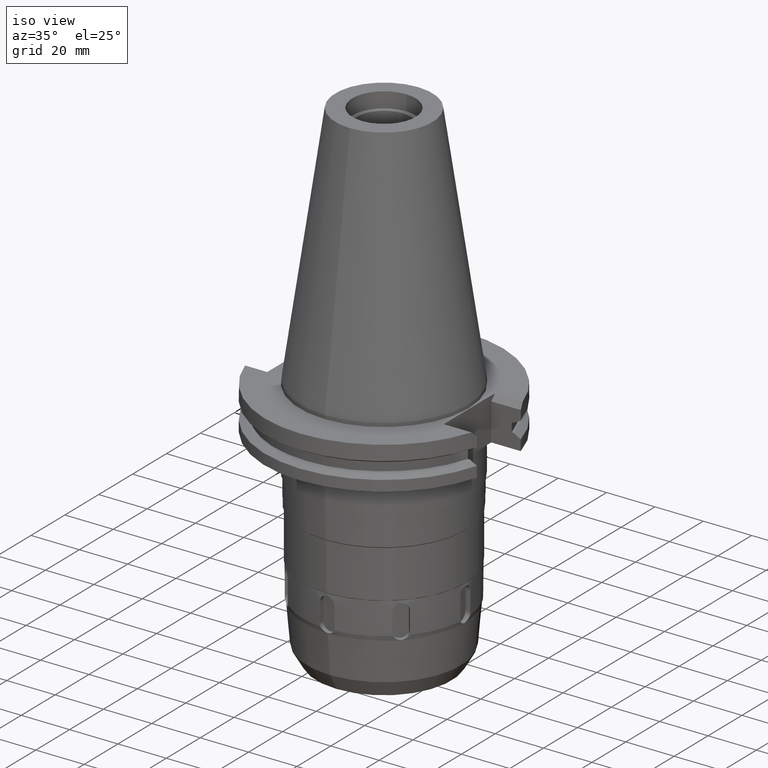
[diagram: clean part render]
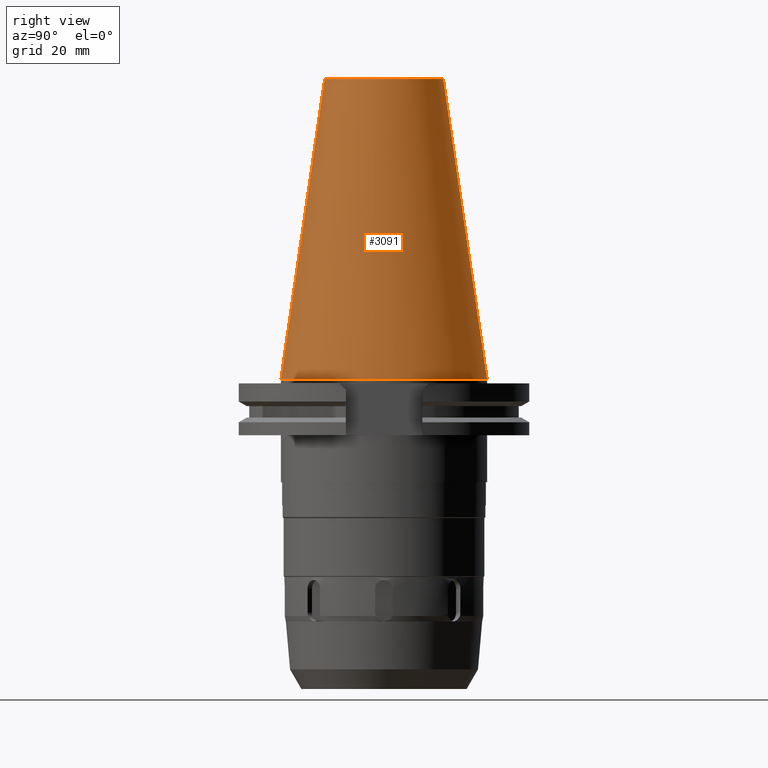
[diagram: tour spotlight — one face highlighted and labeled with its STEP entity id]
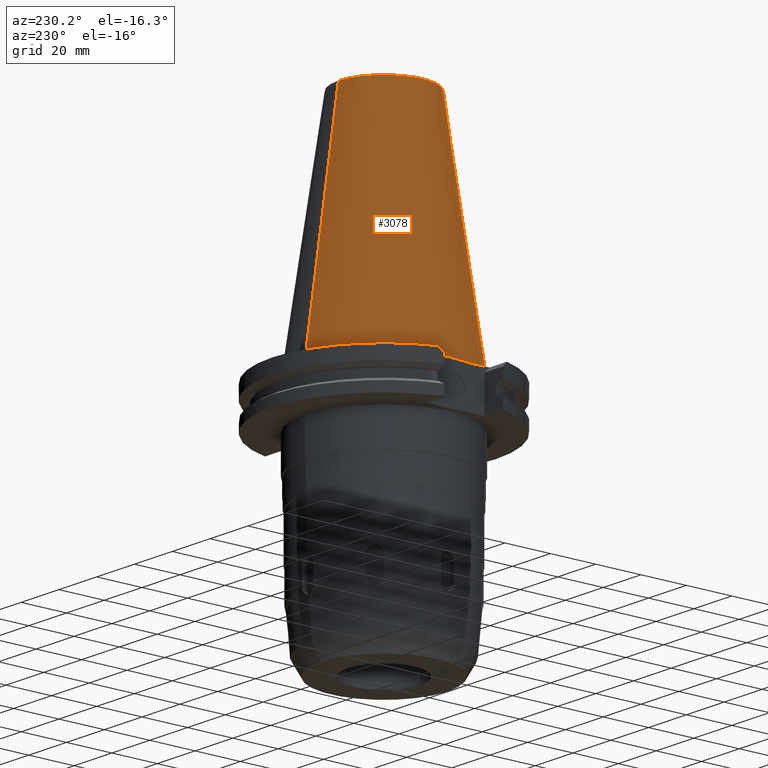
[diagram: tour spotlight — one face highlighted and labeled with its STEP entity id]
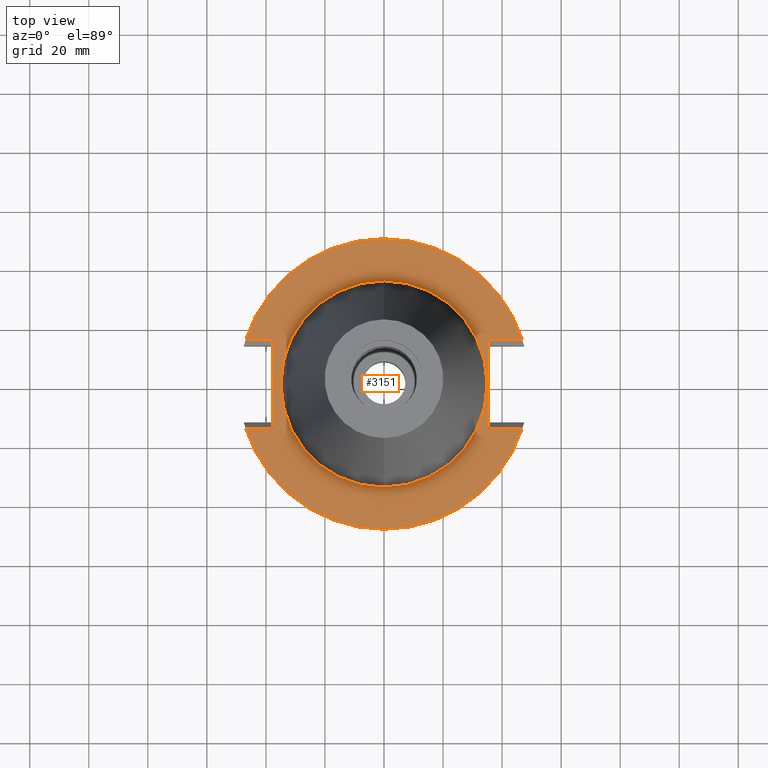
[diagram: tour spotlight — one face highlighted and labeled with its STEP entity id]
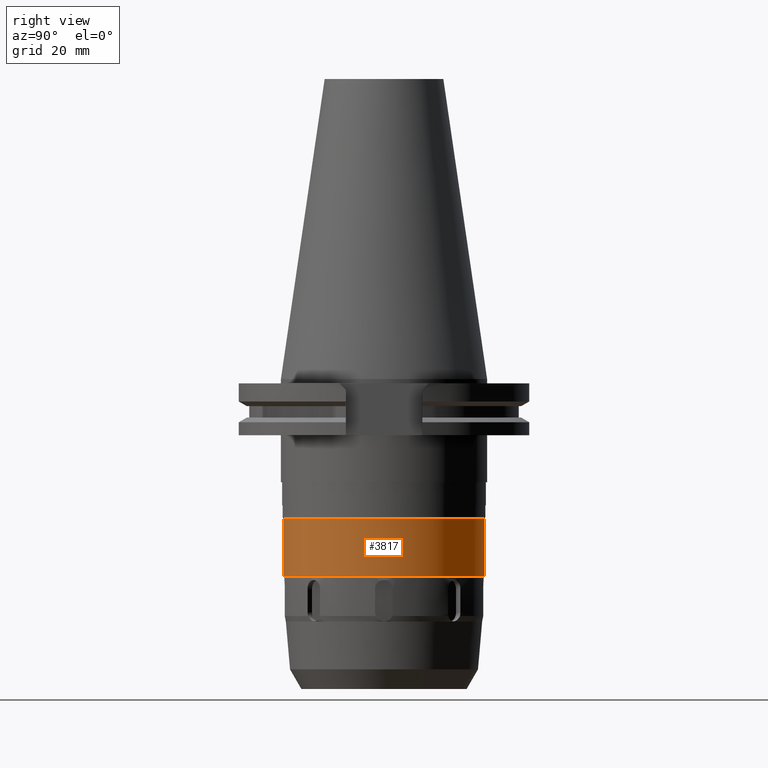
[diagram: tour spotlight — one face highlighted and labeled with its STEP entity id]
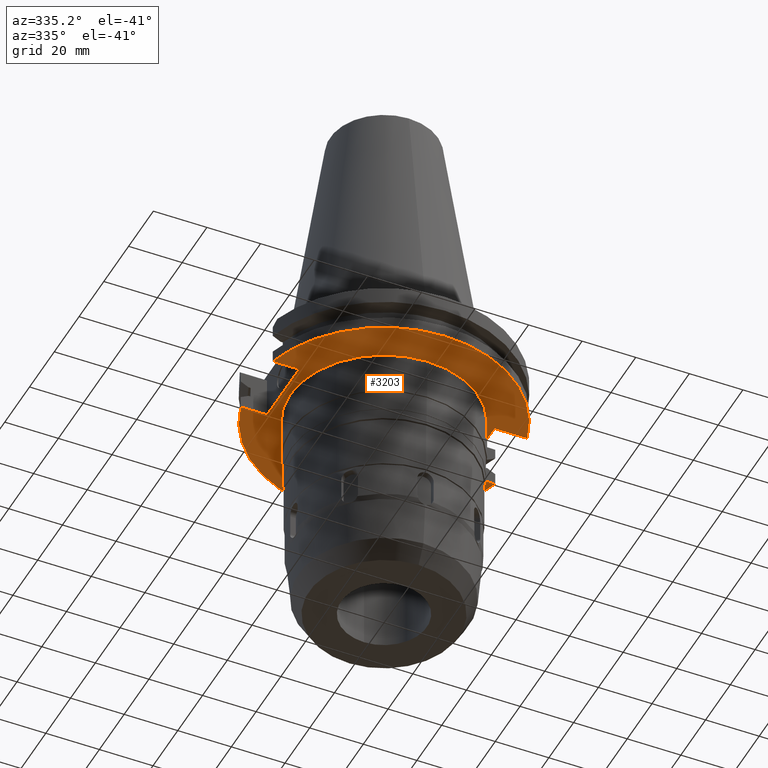
[diagram: tour spotlight — one face highlighted and labeled with its STEP entity id]
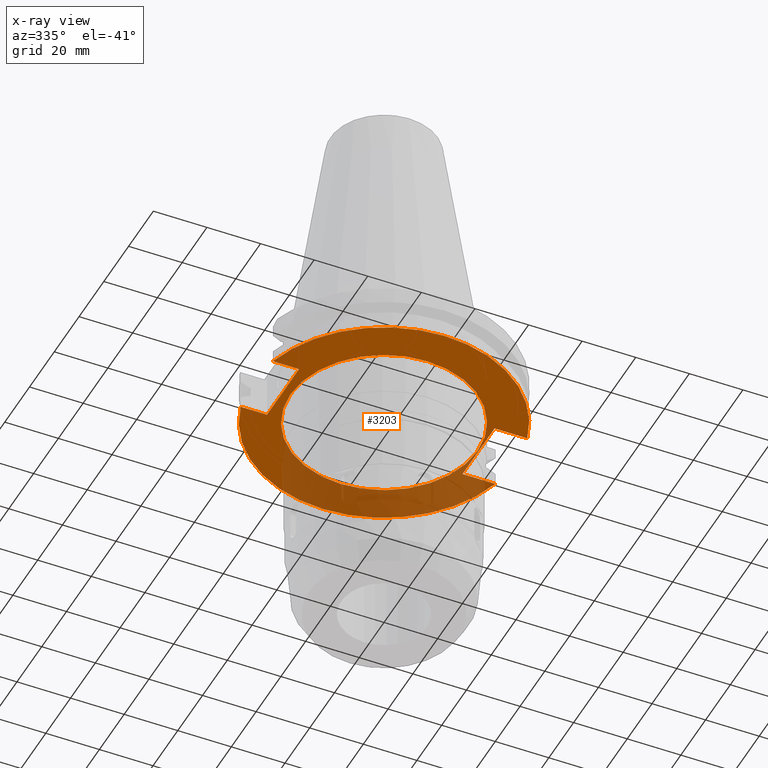
[diagram: x-ray of the same camera — body ghosted, this tour face saturated]
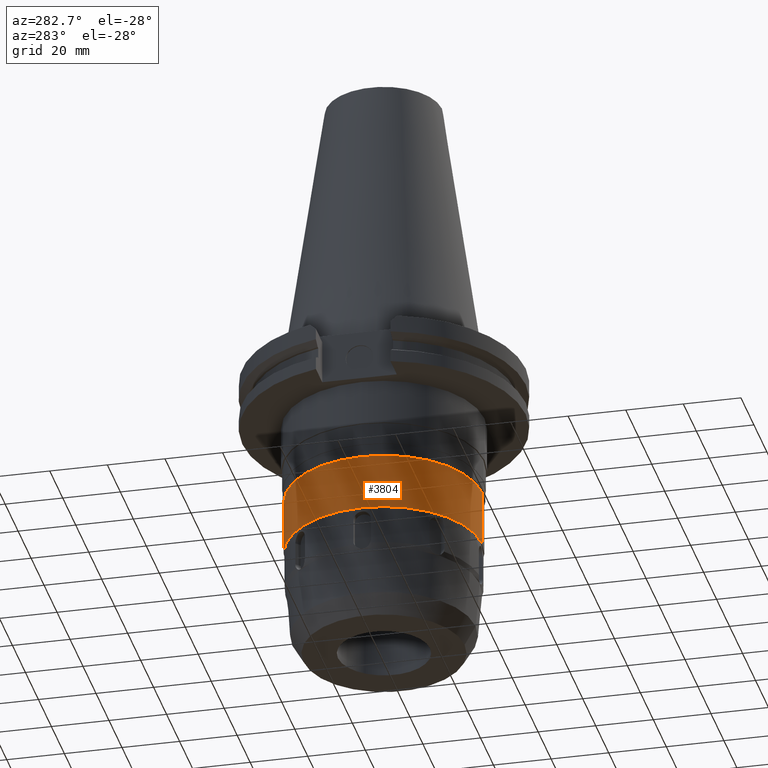
[diagram: tour spotlight — one face highlighted and labeled with its STEP entity id]
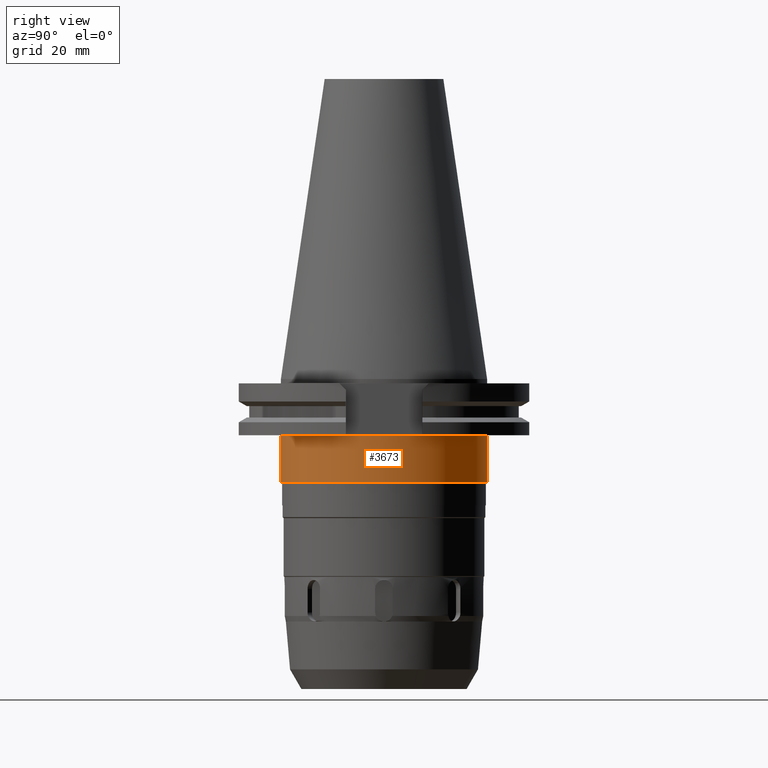
[diagram: tour spotlight — one face highlighted and labeled with its STEP entity id]
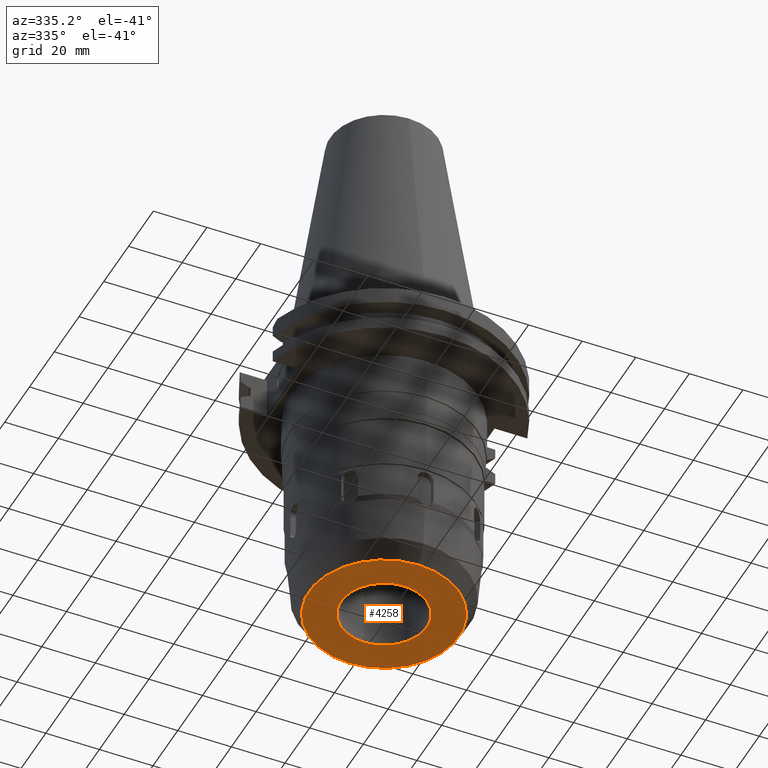
[diagram: tour spotlight — one face highlighted and labeled with its STEP entity id]
A machine part: a face-by-face anatomy tour. The part has 111 B-rep faces; the first image is the clean iso view, then the 8 largest visible faces are spotlighted one at a time (largest first), each with its STEP entity span.

Face 1 — right view, entity #3091. In plain terms, the highlighted conical surface has half-angle 8.297 deg.
Definition (entity closure, byte-faithful):
#26=CARTESIAN_POINT('',(0.E0,0.E0,1.016E2));
#27=DIRECTION('',(0.E0,0.E0,-1.E0));
#28=DIRECTION('',(0.E0,1.E0,0.E0));
#29=AXIS2_PLACEMENT_3D('',#26,#27,#28);
#50=DIRECTION('',(0.E0,-1.443069799457E-1,-9.895329683942E-1));
#51=VECTOR('',#50,1.026746993229E2);
#52=CARTESIAN_POINT('',(0.E0,-2.010832422387E1,1.016E2));
#53=LINE('',#52,#51);
#65=DIRECTION('',(0.E0,1.443069799457E-1,-9.895329683942E-1));
#66=VECTOR('',#65,1.026746993229E2);
#67=CARTESIAN_POINT('',(0.E0,2.010832422387E1,1.016E2));
#68=LINE('',#67,#66);
#72=CARTESIAN_POINT('',(0.E0,0.E0,7.389644451905E-13));
#73=DIRECTION('',(0.E0,0.E0,-1.E0));
#74=DIRECTION('',(0.E0,1.E0,0.E0));
#75=AXIS2_PLACEMENT_3D('',#72,#73,#74);
#2639=CARTESIAN_POINT('',(0.E0,-2.010832422388E1,1.016E2));
#2640=CARTESIAN_POINT('',(0.E0,2.010832422388E1,1.016E2));
#2641=VERTEX_POINT('',#2639);
#2642=VERTEX_POINT('',#2640);
#2647=CARTESIAN_POINT('',(0.E0,3.4925E1,4.831690603169E-13));
#2648=VERTEX_POINT('',#2647);
#2649=CARTESIAN_POINT('',(0.E0,-3.4925E1,4.831690603169E-13));
#2650=VERTEX_POINT('',#2649);
#3079=CARTESIAN_POINT('',(0.E0,0.E0,5.08E1));
#3080=DIRECTION('',(0.E0,0.E0,-1.E0));
#3081=DIRECTION('',(0.E0,-1.E0,0.E0));
#3082=AXIS2_PLACEMENT_3D('',#3079,#3080,#3081);
#3083=CONICAL_SURFACE('',#3082,2.751666211194E1,8.29715E0);
#3084=ORIENTED_EDGE('',*,*,#3069,.T.);
#3086=ORIENTED_EDGE('',*,*,#3085,.T.);
#3087=ORIENTED_EDGE('',*,*,#3072,.F.);
#3088=ORIENTED_EDGE('',*,*,#3053,.F.);
#3089=EDGE_LOOP('',(#3084,#3086,#3087,#3088));
#3090=FACE_OUTER_BOUND('',#3089,.F.);
#30=CIRCLE('',#29,2.010832422388E1);
#76=CIRCLE('',#75,3.4925E1);
#3053=EDGE_CURVE('',#2642,#2641,#30,.T.);
#3069=EDGE_CURVE('',#2642,#2648,#68,.T.);
#3072=EDGE_CURVE('',#2641,#2650,#53,.T.);
#3085=EDGE_CURVE('',#2648,#2650,#76,.T.);
#3091=ADVANCED_FACE('',(#3090),#3083,.T.);

Face 2 — auxiliary view, entity #3078. In plain terms, the highlighted conical surface has half-angle 8.297 deg.
Definition (entity closure, byte-faithful):
#17=CARTESIAN_POINT('',(0.E0,0.E0,1.016E2));
#18=DIRECTION('',(0.E0,0.E0,-1.E0));
#19=DIRECTION('',(0.E0,-1.E0,0.E0));
#20=AXIS2_PLACEMENT_3D('',#17,#18,#19);
#50=DIRECTION('',(0.E0,-1.443069799457E-1,-9.895329683942E-1));
#51=VECTOR('',#50,1.026746993229E2);
#52=CARTESIAN_POINT('',(0.E0,-2.010832422387E1,1.016E2));
#53=LINE('',#52,#51);
#57=CARTESIAN_POINT('',(0.E0,0.E0,7.389644451905E-13));
#58=DIRECTION('',(0.E0,0.E0,-1.E0));
#59=DIRECTION('',(0.E0,-1.E0,0.E0));
#60=AXIS2_PLACEMENT_3D('',#57,#58,#59);
#65=DIRECTION('',(0.E0,1.443069799457E-1,-9.895329683942E-1));
#66=VECTOR('',#65,1.026746993229E2);
#67=CARTESIAN_POINT('',(0.E0,2.010832422387E1,1.016E2));
#68=LINE('',#67,#66);
#2639=CARTESIAN_POINT('',(0.E0,-2.010832422388E1,1.016E2));
#2640=CARTESIAN_POINT('',(0.E0,2.010832422388E1,1.016E2));
#2641=VERTEX_POINT('',#2639);
#2642=VERTEX_POINT('',#2640);
#2647=CARTESIAN_POINT('',(0.E0,3.4925E1,4.831690603169E-13));
#2648=VERTEX_POINT('',#2647);
#2649=CARTESIAN_POINT('',(0.E0,-3.4925E1,4.831690603169E-13));
#2650=VERTEX_POINT('',#2649);
#3064=CARTESIAN_POINT('',(0.E0,0.E0,5.08E1));
#3065=DIRECTION('',(0.E0,0.E0,-1.E0));
#3066=DIRECTION('',(0.E0,-1.E0,0.E0));
#3067=AXIS2_PLACEMENT_3D('',#3064,#3065,#3066);
#3068=CONICAL_SURFACE('',#3067,2.751666211194E1,8.29715E0);
#3070=ORIENTED_EDGE('',*,*,#3069,.F.);
#3071=ORIENTED_EDGE('',*,*,#3051,.F.);
#3073=ORIENTED_EDGE('',*,*,#3072,.T.);
#3075=ORIENTED_EDGE('',*,*,#3074,.T.);
#3076=EDGE_LOOP('',(#3070,#3071,#3073,#3075));
#3077=FACE_OUTER_BOUND('',#3076,.F.);
#21=CIRCLE('',#20,2.010832422388E1);
#61=CIRCLE('',#60,3.4925E1);
#3051=EDGE_CURVE('',#2641,#2642,#21,.T.);
#3069=EDGE_CURVE('',#2642,#2648,#68,.T.);
#3072=EDGE_CURVE('',#2641,#2650,#53,.T.);
#3074=EDGE_CURVE('',#2650,#2648,#61,.T.);
#3078=ADVANCED_FACE('',(#3077),#3068,.T.);

Face 3 — top view, entity #3151. In plain terms, the highlighted planar face has unit normal (0, 0, 1).
Definition (entity closure, byte-faithful):
#94=DIRECTION('',(0.E0,-1.E0,0.E0));
#95=VECTOR('',#94,3.031E1);
#96=CARTESIAN_POINT('',(3.527E1,1.5155E1,-1.5E0));
#97=LINE('',#96,#95);
#101=DIRECTION('',(1.E0,3.690005925252E-14,0.E0));
#102=VECTOR('',#101,1.155352186669E1);
#103=CARTESIAN_POINT('',(3.527E1,-1.5155E1,-1.5E0));
#104=LINE('',#103,#102);
#108=CARTESIAN_POINT('',(0.E0,0.E0,-1.5E0));
#109=DIRECTION('',(0.E0,0.E0,-1.E0));
#110=DIRECTION('',(9.514075356433E-1,-3.079345727928E-1,0.E0));
#111=AXIS2_PLACEMENT_3D('',#108,#109,#110);
#116=CARTESIAN_POINT('',(0.E0,0.E0,-1.5E0));
#117=DIRECTION('',(0.E0,0.E0,-1.E0));
#118=DIRECTION('',(0.E0,-1.E0,0.E0));
#119=AXIS2_PLACEMENT_3D('',#116,#117,#118);
#124=DIRECTION('',(0.E0,1.E0,0.E0));
#125=VECTOR('',#124,3.031E1);
#126=CARTESIAN_POINT('',(-3.768E1,-1.5155E1,-1.5E0));
#127=LINE('',#126,#125);
#131=DIRECTION('',(-1.E0,-4.662597713134E-14,0.E0));
#132=VECTOR('',#131,9.143521866687E0);
#133=CARTESIAN_POINT('',(-3.768E1,1.5155E1,-1.5E0));
#134=LINE('',#133,#132);
#138=CARTESIAN_POINT('',(0.E0,0.E0,-1.5E0));
#139=DIRECTION('',(0.E0,0.E0,-1.E0));
#140=DIRECTION('',(-9.514075356433E-1,3.079345727928E-1,0.E0));
#141=AXIS2_PLACEMENT_3D('',#138,#139,#140);
#146=CARTESIAN_POINT('',(0.E0,0.E0,-1.5E0));
#147=DIRECTION('',(0.E0,0.E0,-1.E0));
#148=DIRECTION('',(0.E0,1.E0,0.E0));
#149=AXIS2_PLACEMENT_3D('',#146,#147,#148);
#154=CARTESIAN_POINT('',(0.E0,0.E0,-1.5E0));
#155=DIRECTION('',(0.E0,0.E0,1.E0));
#156=DIRECTION('',(0.E0,-1.E0,0.E0));
#157=AXIS2_PLACEMENT_3D('',#154,#155,#156);
#162=CARTESIAN_POINT('',(0.E0,0.E0,-1.5E0));
#163=DIRECTION('',(0.E0,0.E0,1.E0));
#164=DIRECTION('',(0.E0,1.E0,0.E0));
#165=AXIS2_PLACEMENT_3D('',#162,#163,#164);
#289=DIRECTION('',(1.E0,-3.690005925252E-14,0.E0));
#290=VECTOR('',#289,1.155352186669E1);
#291=CARTESIAN_POINT('',(3.527E1,1.5155E1,-1.5E0));
#292=LINE('',#291,#290);
#576=DIRECTION('',(-1.E0,4.623742732191E-14,0.E0));
#577=VECTOR('',#576,9.143521866687E0);
#578=CARTESIAN_POINT('',(-3.768E1,-1.5155E1,-1.5E0));
#579=LINE('',#578,#577);
#2651=CARTESIAN_POINT('',(0.E0,3.4925E1,-1.5E0));
#2652=VERTEX_POINT('',#2651);
#2653=CARTESIAN_POINT('',(0.E0,-3.4925E1,-1.5E0));
#2654=VERTEX_POINT('',#2653);
#2655=CARTESIAN_POINT('',(3.527E1,1.5155E1,-1.5E0));
#2656=CARTESIAN_POINT('',(3.527E1,-1.5155E1,-1.5E0));
#2657=VERTEX_POINT('',#2655);
#2658=VERTEX_POINT('',#2656);
#2659=CARTESIAN_POINT('',(4.682352186669E1,-1.5155E1,-1.5E0));
#2660=VERTEX_POINT('',#2659);
#2661=CARTESIAN_POINT('',(2.905718876327E-14,-4.9215E1,-1.5E0));
#2662=CARTESIAN_POINT('',(-4.682352186669E1,-1.5155E1,-1.5E0));
#2663=VERTEX_POINT('',#2661);
#2664=VERTEX_POINT('',#2662);
#2665=CARTESIAN_POINT('',(-3.768E1,-1.5155E1,-1.5E0));
#2666=VERTEX_POINT('',#2665);
#2667=CARTESIAN_POINT('',(-3.768E1,1.5155E1,-1.5E0));
#2668=VERTEX_POINT('',#2667);
#2669=CARTESIAN_POINT('',(-4.682352186669E1,1.5155E1,-1.5E0));
#2670=VERTEX_POINT('',#2669);
#2671=CARTESIAN_POINT('',(-1.060760121903E-13,4.9215E1,-1.5E0));
#2672=CARTESIAN_POINT('',(4.682352186669E1,1.5155E1,-1.5E0));
#2673=VERTEX_POINT('',#2671);
#2674=VERTEX_POINT('',#2672);
#3120=CARTESIAN_POINT('',(0.E0,0.E0,-1.5E0));
#3121=DIRECTION('',(0.E0,0.E0,1.E0));
#3122=DIRECTION('',(0.E0,1.E0,0.E0));
#3123=AXIS2_PLACEMENT_3D('',#3120,#3121,#3122);
#3124=PLANE('',#3123);
#3126=ORIENTED_EDGE('',*,*,#3125,.T.);
#3128=ORIENTED_EDGE('',*,*,#3127,.T.);
#3130=ORIENTED_EDGE('',*,*,#3129,.T.);
#3132=ORIENTED_EDGE('',*,*,#3131,.T.);
#3134=ORIENTED_EDGE('',*,*,#3133,.F.);
#3136=ORIENTED_EDGE('',*,*,#3135,.T.);
#3138=ORIENTED_EDGE('',*,*,#3137,.T.);
#3140=ORIENTED_EDGE('',*,*,#3139,.T.);
#3142=ORIENTED_EDGE('',*,*,#3141,.T.);
#3144=ORIENTED_EDGE('',*,*,#3143,.F.);
#3145=EDGE_LOOP('',(#3126,#3128,#3130,#3132,#3134,#3136,#3138,#3140,#3142,
#3144));
#3146=FACE_OUTER_BOUND('',#3145,.F.);
#3147=ORIENTED_EDGE('',*,*,#3099,.T.);
#3148=ORIENTED_EDGE('',*,*,#3115,.T.);
#3149=EDGE_LOOP('',(#3147,#3148));
#3150=FACE_BOUND('',#3149,.F.);
#112=CIRCLE('',#111,4.9215E1);
#120=CIRCLE('',#119,4.9215E1);
#142=CIRCLE('',#141,4.9215E1);
#150=CIRCLE('',#149,4.9215E1);
#158=CIRCLE('',#157,3.4925E1);
#166=CIRCLE('',#165,3.4925E1);
#3099=EDGE_CURVE('',#2654,#2652,#158,.T.);
#3115=EDGE_CURVE('',#2652,#2654,#166,.T.);
#3125=EDGE_CURVE('',#2657,#2658,#97,.T.);
#3127=EDGE_CURVE('',#2658,#2660,#104,.T.);
#3129=EDGE_CURVE('',#2660,#2663,#112,.T.);
#3131=EDGE_CURVE('',#2663,#2664,#120,.T.);
#3133=EDGE_CURVE('',#2666,#2664,#579,.T.);
#3135=EDGE_CURVE('',#2666,#2668,#127,.T.);
#3137=EDGE_CURVE('',#2668,#2670,#134,.T.);
#3139=EDGE_CURVE('',#2670,#2673,#142,.T.);
#3141=EDGE_CURVE('',#2673,#2674,#150,.T.);
#3143=EDGE_CURVE('',#2657,#2674,#292,.T.);
#3151=ADVANCED_FACE('',(#3146,#3150),#3124,.T.);

Face 4 — right view, entity #3817. In plain terms, the highlighted cylindrical surface (partial cylindrical patch) has radius 34 mm, axis along (0, 0, 1).
Definition (entity closure, byte-faithful):
#961=CARTESIAN_POINT('',(0.E0,0.E0,-4.715E1));
#962=DIRECTION('',(0.E0,0.E0,-1.E0));
#963=DIRECTION('',(0.E0,1.E0,0.E0));
#964=AXIS2_PLACEMENT_3D('',#961,#962,#963);
#1000=DIRECTION('',(0.E0,0.E0,-1.E0));
#1001=VECTOR('',#1000,1.965E1);
#1002=CARTESIAN_POINT('',(0.E0,-3.4E1,-4.715E1));
#1003=LINE('',#1002,#1001);
#1007=DIRECTION('',(0.E0,0.E0,-1.E0));
#1008=VECTOR('',#1007,1.965E1);
#1009=CARTESIAN_POINT('',(0.E0,3.4E1,-4.715E1));
#1010=LINE('',#1009,#1008);
#1029=CARTESIAN_POINT('',(0.E0,0.E0,-6.68E1));
#1030=DIRECTION('',(0.E0,0.E0,1.E0));
#1031=DIRECTION('',(0.E0,-1.E0,0.E0));
#1032=AXIS2_PLACEMENT_3D('',#1029,#1030,#1031);
#2723=CARTESIAN_POINT('',(0.E0,3.4E1,-4.715E1));
#2724=VERTEX_POINT('',#2723);
#2725=CARTESIAN_POINT('',(0.E0,-3.4E1,-4.715E1));
#2726=VERTEX_POINT('',#2725);
#2727=CARTESIAN_POINT('',(0.E0,3.4E1,-6.68E1));
#2728=VERTEX_POINT('',#2727);
#2729=CARTESIAN_POINT('',(0.E0,-3.4E1,-6.68E1));
#2730=VERTEX_POINT('',#2729);
#3805=CARTESIAN_POINT('',(0.E0,0.E0,-1.1533E2));
#3806=DIRECTION('',(0.E0,0.E0,1.E0));
#3807=DIRECTION('',(0.E0,1.E0,0.E0));
#3808=AXIS2_PLACEMENT_3D('',#3805,#3806,#3807);
#3809=CYLINDRICAL_SURFACE('',#3808,3.4E1);
#3810=ORIENTED_EDGE('',*,*,#3795,.T.);
#3812=ORIENTED_EDGE('',*,*,#3811,.F.);
#3813=ORIENTED_EDGE('',*,*,#3798,.F.);
#3814=ORIENTED_EDGE('',*,*,#3769,.F.);
#3815=EDGE_LOOP('',(#3810,#3812,#3813,#3814));
#3816=FACE_OUTER_BOUND('',#3815,.F.);
#965=CIRCLE('',#964,3.4E1);
#1033=CIRCLE('',#1032,3.4E1);
#3769=EDGE_CURVE('',#2724,#2726,#965,.T.);
#3795=EDGE_CURVE('',#2724,#2728,#1010,.T.);
#3798=EDGE_CURVE('',#2726,#2730,#1003,.T.);
#3811=EDGE_CURVE('',#2730,#2728,#1033,.T.);
#3817=ADVANCED_FACE('',(#3816),#3809,.T.);

Face 5 — auxiliary view, entity #3203. An x-ray twin of the same camera follows (body ghosted, this face saturated) — the face is partly hidden behind the body. In plain terms, the highlighted planar face has unit normal (0, 0, 1).
Definition (entity closure, byte-faithful):
#170=DIRECTION('',(0.E0,-1.E0,0.E0));
#171=VECTOR('',#170,2.591E1);
#172=CARTESIAN_POINT('',(3.527E1,1.2955E1,-1.905E1));
#173=LINE('',#172,#171);
#205=DIRECTION('',(1.E0,-2.866193929302E-14,0.E0));
#206=VECTOR('',#205,1.220930285925E1);
#207=CARTESIAN_POINT('',(3.527E1,1.2955E1,-1.905E1));
#208=LINE('',#207,#206);
#212=CARTESIAN_POINT('',(0.E0,0.E0,-1.905E1));
#213=DIRECTION('',(0.E0,0.E0,1.E0));
#214=DIRECTION('',(9.647323551609E-1,2.632327542416E-1,0.E0));
#215=AXIS2_PLACEMENT_3D('',#212,#213,#214);
#220=CARTESIAN_POINT('',(0.E0,0.E0,-1.905E1));
#221=DIRECTION('',(0.E0,0.E0,1.E0));
#222=DIRECTION('',(0.E0,1.E0,0.E0));
#223=AXIS2_PLACEMENT_3D('',#220,#221,#222);
#228=DIRECTION('',(-1.E0,3.498584286337E-14,0.E0));
#229=VECTOR('',#228,9.799302859247E0);
#230=CARTESIAN_POINT('',(-3.768E1,-1.2955E1,-1.905E1));
#231=LINE('',#230,#229);
#235=CARTESIAN_POINT('',(0.E0,0.E0,-1.905E1));
#236=DIRECTION('',(0.E0,0.E0,1.E0));
#237=DIRECTION('',(-9.647323551609E-1,-2.632327542416E-1,0.E0));
#238=AXIS2_PLACEMENT_3D('',#235,#236,#237);
#243=CARTESIAN_POINT('',(0.E0,0.E0,-1.905E1));
#244=DIRECTION('',(0.E0,0.E0,1.E0));
#245=DIRECTION('',(0.E0,-1.E0,0.E0));
#246=AXIS2_PLACEMENT_3D('',#243,#244,#245);
#251=CARTESIAN_POINT('',(0.E0,0.E0,-1.905E1));
#252=DIRECTION('',(0.E0,0.E0,-1.E0));
#253=DIRECTION('',(0.E0,-1.E0,0.E0));
#254=AXIS2_PLACEMENT_3D('',#251,#252,#253);
#259=CARTESIAN_POINT('',(0.E0,0.E0,-1.905E1));
#260=DIRECTION('',(0.E0,0.E0,-1.E0));
#261=DIRECTION('',(0.E0,1.E0,0.E0));
#262=AXIS2_PLACEMENT_3D('',#259,#260,#261);
#318=DIRECTION('',(0.E0,1.E0,0.E0));
#319=VECTOR('',#318,2.591E1);
#320=CARTESIAN_POINT('',(-3.768E1,-1.2955E1,-1.905E1));
#321=LINE('',#320,#319);
#355=DIRECTION('',(-1.E0,-3.498584286337E-14,0.E0));
#356=VECTOR('',#355,9.799302859247E0);
#357=CARTESIAN_POINT('',(-3.768E1,1.2955E1,-1.905E1));
#358=LINE('',#357,#356);
#605=DIRECTION('',(1.E0,2.749800267198E-14,0.E0));
#606=VECTOR('',#605,1.220930285925E1);
#607=CARTESIAN_POINT('',(3.527E1,-1.2955E1,-1.905E1));
#608=LINE('',#607,#606);
#2675=CARTESIAN_POINT('',(3.527E1,1.2955E1,-1.905E1));
#2676=CARTESIAN_POINT('',(3.527E1,-1.2955E1,-1.905E1));
#2677=VERTEX_POINT('',#2675);
#2678=VERTEX_POINT('',#2676);
#2683=CARTESIAN_POINT('',(4.747930285925E1,1.2955E1,-1.905E1));
#2684=VERTEX_POINT('',#2683);
#2685=CARTESIAN_POINT('',(-1.776356839400E-14,4.9215E1,-1.905E1));
#2686=CARTESIAN_POINT('',(-4.747930285925E1,1.2955E1,-1.905E1));
#2687=VERTEX_POINT('',#2685);
#2688=VERTEX_POINT('',#2686);
#2689=CARTESIAN_POINT('',(-3.768E1,1.2955E1,-1.905E1));
#2690=VERTEX_POINT('',#2689);
#2691=CARTESIAN_POINT('',(-3.768E1,-1.2955E1,-1.905E1));
#2692=VERTEX_POINT('',#2691);
#2693=CARTESIAN_POINT('',(-4.747930285925E1,-1.2955E1,-1.905E1));
#2694=VERTEX_POINT('',#2693);
#2695=CARTESIAN_POINT('',(1.776356839400E-14,-4.9215E1,-1.905E1));
#2696=CARTESIAN_POINT('',(4.747930285925E1,-1.2955E1,-1.905E1));
#2697=VERTEX_POINT('',#2695);
#2698=VERTEX_POINT('',#2696);
#2699=CARTESIAN_POINT('',(0.E0,-3.4925E1,-1.905E1));
#2700=CARTESIAN_POINT('',(0.E0,3.4925E1,-1.905E1));
#2701=VERTEX_POINT('',#2699);
#2702=VERTEX_POINT('',#2700);
#3171=CARTESIAN_POINT('',(0.E0,0.E0,-1.905E1));
#3172=DIRECTION('',(0.E0,0.E0,1.E0));
#3173=DIRECTION('',(0.E0,1.E0,0.E0));
#3174=AXIS2_PLACEMENT_3D('',#3171,#3172,#3173);
#3175=PLANE('',#3174);
#3176=ORIENTED_EDGE('',*,*,#3157,.F.);
#3178=ORIENTED_EDGE('',*,*,#3177,.T.);
#3180=ORIENTED_EDGE('',*,*,#3179,.T.);
#3182=ORIENTED_EDGE('',*,*,#3181,.T.);
#3184=ORIENTED_EDGE('',*,*,#3183,.F.);
#3186=ORIENTED_EDGE('',*,*,#3185,.F.);
#3188=ORIENTED_EDGE('',*,*,#3187,.T.);
#3190=ORIENTED_EDGE('',*,*,#3189,.T.);
#3192=ORIENTED_EDGE('',*,*,#3191,.T.);
#3194=ORIENTED_EDGE('',*,*,#3193,.F.);
#3195=EDGE_LOOP('',(#3176,#3178,#3180,#3182,#3184,#3186,#3188,#3190,#3192,
#3194));
#3196=FACE_OUTER_BOUND('',#3195,.F.);
#3198=ORIENTED_EDGE('',*,*,#3197,.T.);
#3200=ORIENTED_EDGE('',*,*,#3199,.T.);
#3201=EDGE_LOOP('',(#3198,#3200));
#3202=FACE_BOUND('',#3201,.F.);
#216=CIRCLE('',#215,4.9215E1);
#224=CIRCLE('',#223,4.9215E1);
#239=CIRCLE('',#238,4.9215E1);
#247=CIRCLE('',#246,4.9215E1);
#255=CIRCLE('',#254,3.4925E1);
#263=CIRCLE('',#262,3.4925E1);
#3157=EDGE_CURVE('',#2677,#2678,#173,.T.);
#3177=EDGE_CURVE('',#2677,#2684,#208,.T.);
#3179=EDGE_CURVE('',#2684,#2687,#216,.T.);
#3181=EDGE_CURVE('',#2687,#2688,#224,.T.);
#3183=EDGE_CURVE('',#2690,#2688,#358,.T.);
#3185=EDGE_CURVE('',#2692,#2690,#321,.T.);
#3187=EDGE_CURVE('',#2692,#2694,#231,.T.);
#3189=EDGE_CURVE('',#2694,#2697,#239,.T.);
#3191=EDGE_CURVE('',#2697,#2698,#247,.T.);
#3193=EDGE_CURVE('',#2678,#2698,#608,.T.);
#3197=EDGE_CURVE('',#2701,#2702,#255,.T.);
#3199=EDGE_CURVE('',#2702,#2701,#263,.T.);
#3203=ADVANCED_FACE('',(#3196,#3202),#3175,.F.);

Face 6 — auxiliary view, entity #3804. In plain terms, the highlighted cylindrical surface (partial cylindrical patch) has radius 34 mm, axis along (0, 0, 1).
Definition (entity closure, byte-faithful):
#992=CARTESIAN_POINT('',(0.E0,0.E0,-4.715E1));
#993=DIRECTION('',(0.E0,0.E0,-1.E0));
#994=DIRECTION('',(0.E0,-1.E0,0.E0));
#995=AXIS2_PLACEMENT_3D('',#992,#993,#994);
#1000=DIRECTION('',(0.E0,0.E0,-1.E0));
#1001=VECTOR('',#1000,1.965E1);
#1002=CARTESIAN_POINT('',(0.E0,-3.4E1,-4.715E1));
#1003=LINE('',#1002,#1001);
#1007=DIRECTION('',(0.E0,0.E0,-1.E0));
#1008=VECTOR('',#1007,1.965E1);
#1009=CARTESIAN_POINT('',(0.E0,3.4E1,-4.715E1));
#1010=LINE('',#1009,#1008);
#1037=CARTESIAN_POINT('',(0.E0,0.E0,-6.68E1));
#1038=DIRECTION('',(0.E0,0.E0,1.E0));
#1039=DIRECTION('',(0.E0,1.E0,0.E0));
#1040=AXIS2_PLACEMENT_3D('',#1037,#1038,#1039);
#2723=CARTESIAN_POINT('',(0.E0,3.4E1,-4.715E1));
#2724=VERTEX_POINT('',#2723);
#2725=CARTESIAN_POINT('',(0.E0,-3.4E1,-4.715E1));
#2726=VERTEX_POINT('',#2725);
#2727=CARTESIAN_POINT('',(0.E0,3.4E1,-6.68E1));
#2728=VERTEX_POINT('',#2727);
#2729=CARTESIAN_POINT('',(0.E0,-3.4E1,-6.68E1));
#2730=VERTEX_POINT('',#2729);
#3790=CARTESIAN_POINT('',(0.E0,0.E0,-1.1533E2));
#3791=DIRECTION('',(0.E0,0.E0,1.E0));
#3792=DIRECTION('',(0.E0,1.E0,0.E0));
#3793=AXIS2_PLACEMENT_3D('',#3790,#3791,#3792);
#3794=CYLINDRICAL_SURFACE('',#3793,3.4E1);
#3796=ORIENTED_EDGE('',*,*,#3795,.F.);
#3797=ORIENTED_EDGE('',*,*,#3785,.F.);
#3799=ORIENTED_EDGE('',*,*,#3798,.T.);
#3801=ORIENTED_EDGE('',*,*,#3800,.F.);
#3802=EDGE_LOOP('',(#3796,#3797,#3799,#3801));
#3803=FACE_OUTER_BOUND('',#3802,.F.);
#996=CIRCLE('',#995,3.4E1);
#1041=CIRCLE('',#1040,3.4E1);
#3785=EDGE_CURVE('',#2726,#2724,#996,.T.);
#3795=EDGE_CURVE('',#2724,#2728,#1010,.T.);
#3798=EDGE_CURVE('',#2726,#2730,#1003,.T.);
#3800=EDGE_CURVE('',#2728,#2730,#1041,.T.);
#3804=ADVANCED_FACE('',(#3803),#3794,.T.);

Face 7 — right view, entity #3673. In plain terms, the highlighted cylindrical surface (partial cylindrical patch) has radius 34.925 mm, axis along (0, 0, 1).
Definition (entity closure, byte-faithful):
#259=CARTESIAN_POINT('',(0.E0,0.E0,-1.905E1));
#260=DIRECTION('',(0.E0,0.E0,-1.E0));
#261=DIRECTION('',(0.E0,1.E0,0.E0));
#262=AXIS2_PLACEMENT_3D('',#259,#260,#261);
#848=DIRECTION('',(0.E0,0.E0,-1.E0));
#849=VECTOR('',#848,1.595E1);
#850=CARTESIAN_POINT('',(0.E0,-3.4925E1,-1.905E1));
#851=LINE('',#850,#849);
#855=DIRECTION('',(0.E0,0.E0,-1.E0));
#856=VECTOR('',#855,1.595E1);
#857=CARTESIAN_POINT('',(0.E0,3.4925E1,-1.905E1));
#858=LINE('',#857,#856);
#862=CARTESIAN_POINT('',(0.E0,0.E0,-3.5E1));
#863=DIRECTION('',(0.E0,0.E0,1.E0));
#864=DIRECTION('',(0.E0,-1.E0,0.E0));
#865=AXIS2_PLACEMENT_3D('',#862,#863,#864);
#2699=CARTESIAN_POINT('',(0.E0,-3.4925E1,-1.905E1));
#2700=CARTESIAN_POINT('',(0.E0,3.4925E1,-1.905E1));
#2701=VERTEX_POINT('',#2699);
#2702=VERTEX_POINT('',#2700);
#2703=CARTESIAN_POINT('',(0.E0,3.4925E1,-3.5E1));
#2704=VERTEX_POINT('',#2703);
#2705=CARTESIAN_POINT('',(0.E0,-3.4925E1,-3.5E1));
#2706=VERTEX_POINT('',#2705);
#3661=CARTESIAN_POINT('',(0.E0,0.E0,-1.1533E2));
#3662=DIRECTION('',(0.E0,0.E0,1.E0));
#3663=DIRECTION('',(0.E0,1.E0,0.E0));
#3664=AXIS2_PLACEMENT_3D('',#3661,#3662,#3663);
#3665=CYLINDRICAL_SURFACE('',#3664,3.4925E1);
#3666=ORIENTED_EDGE('',*,*,#3651,.T.);
#3668=ORIENTED_EDGE('',*,*,#3667,.F.);
#3669=ORIENTED_EDGE('',*,*,#3654,.F.);
#3670=ORIENTED_EDGE('',*,*,#3199,.F.);
#3671=EDGE_LOOP('',(#3666,#3668,#3669,#3670));
#3672=FACE_OUTER_BOUND('',#3671,.F.);
#263=CIRCLE('',#262,3.4925E1);
#866=CIRCLE('',#865,3.4925E1);
#3199=EDGE_CURVE('',#2702,#2701,#263,.T.);
#3651=EDGE_CURVE('',#2702,#2704,#858,.T.);
#3654=EDGE_CURVE('',#2701,#2706,#851,.T.);
#3667=EDGE_CURVE('',#2706,#2704,#866,.T.);
#3673=ADVANCED_FACE('',(#3672),#3665,.T.);

Face 8 — auxiliary view, entity #4258. In plain terms, the highlighted planar face has unit normal (0, 0, 1).
Definition (entity closure, byte-faithful):
#1933=CARTESIAN_POINT('',(0.E0,0.E0,-1.05E2));
#1934=DIRECTION('',(0.E0,0.E0,1.E0));
#1935=DIRECTION('',(0.E0,-1.E0,0.E0));
#1936=AXIS2_PLACEMENT_3D('',#1933,#1934,#1935);
#1941=CARTESIAN_POINT('',(0.E0,0.E0,-1.05E2));
#1942=DIRECTION('',(0.E0,0.E0,1.E0));
#1943=DIRECTION('',(0.E0,1.E0,0.E0));
#1944=AXIS2_PLACEMENT_3D('',#1941,#1942,#1943);
#1949=CARTESIAN_POINT('',(0.E0,0.E0,-1.05E2));
#1950=DIRECTION('',(0.E0,0.E0,-1.E0));
#1951=DIRECTION('',(0.E0,-1.E0,0.E0));
#1952=AXIS2_PLACEMENT_3D('',#1949,#1950,#1951);
#1957=CARTESIAN_POINT('',(0.E0,0.E0,-1.05E2));
#1958=DIRECTION('',(0.E0,0.E0,-1.E0));
#1959=DIRECTION('',(0.E0,1.E0,0.E0));
#1960=AXIS2_PLACEMENT_3D('',#1957,#1958,#1959);
#2855=CARTESIAN_POINT('',(0.E0,2.8E1,-1.05E2));
#2856=VERTEX_POINT('',#2855);
#2857=CARTESIAN_POINT('',(0.E0,-2.8E1,-1.05E2));
#2858=VERTEX_POINT('',#2857);
#2859=CARTESIAN_POINT('',(0.E0,-1.6E1,-1.05E2));
#2860=CARTESIAN_POINT('',(0.E0,1.6E1,-1.05E2));
#2861=VERTEX_POINT('',#2859);
#2862=VERTEX_POINT('',#2860);
#4243=CARTESIAN_POINT('',(0.E0,0.E0,-1.05E2));
#4244=DIRECTION('',(0.E0,0.E0,1.E0));
#4245=DIRECTION('',(0.E0,1.E0,0.E0));
#4246=AXIS2_PLACEMENT_3D('',#4243,#4244,#4245);
#4247=PLANE('',#4246);
#4248=ORIENTED_EDGE('',*,*,#4222,.T.);
#4249=ORIENTED_EDGE('',*,*,#4238,.T.);
#4250=EDGE_LOOP('',(#4248,#4249));
#4251=FACE_OUTER_BOUND('',#4250,.F.);
#4253=ORIENTED_EDGE('',*,*,#4252,.T.);
#4255=ORIENTED_EDGE('',*,*,#4254,.T.);
#4256=EDGE_LOOP('',(#4253,#4255));
#4257=FACE_BOUND('',#4256,.F.);
#1937=CIRCLE('',#1936,2.8E1);
#1945=CIRCLE('',#1944,2.8E1);
#1953=CIRCLE('',#1952,1.6E1);
#1961=CIRCLE('',#1960,1.6E1);
#4222=EDGE_CURVE('',#2858,#2856,#1937,.T.);
#4238=EDGE_CURVE('',#2856,#2858,#1945,.T.);
#4252=EDGE_CURVE('',#2861,#2862,#1953,.T.);
#4254=EDGE_CURVE('',#2862,#2861,#1961,.T.);
#4258=ADVANCED_FACE('',(#4251,#4257),#4247,.F.);